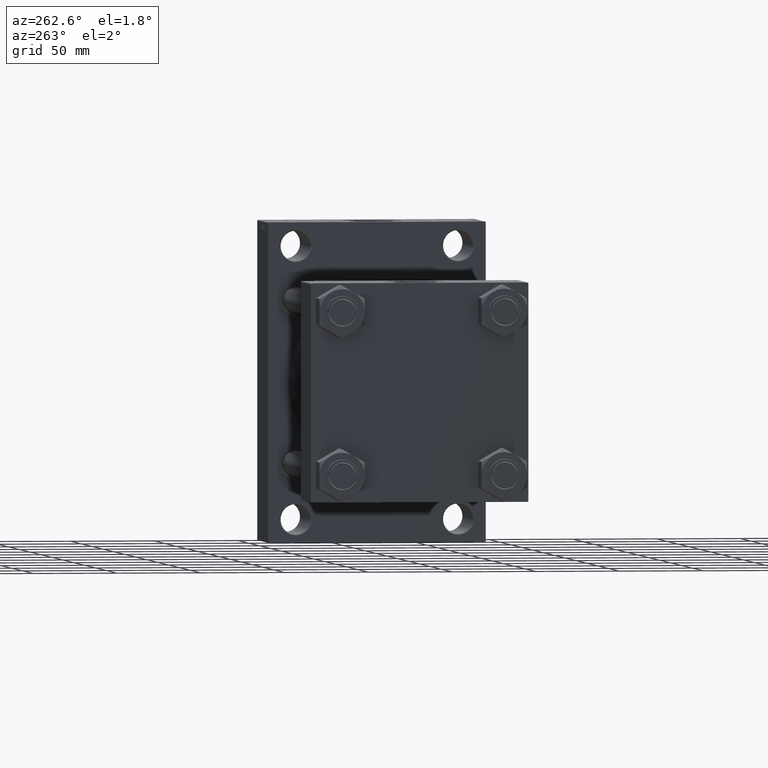
[diagram: clean part render]
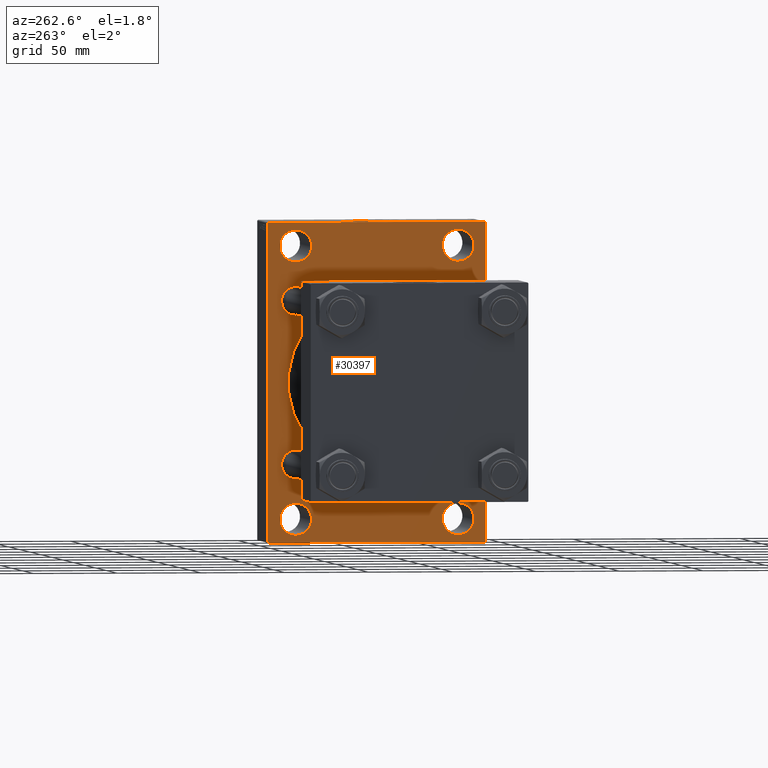
[diagram: same view with one face highlighted and labeled with its STEP entity id]
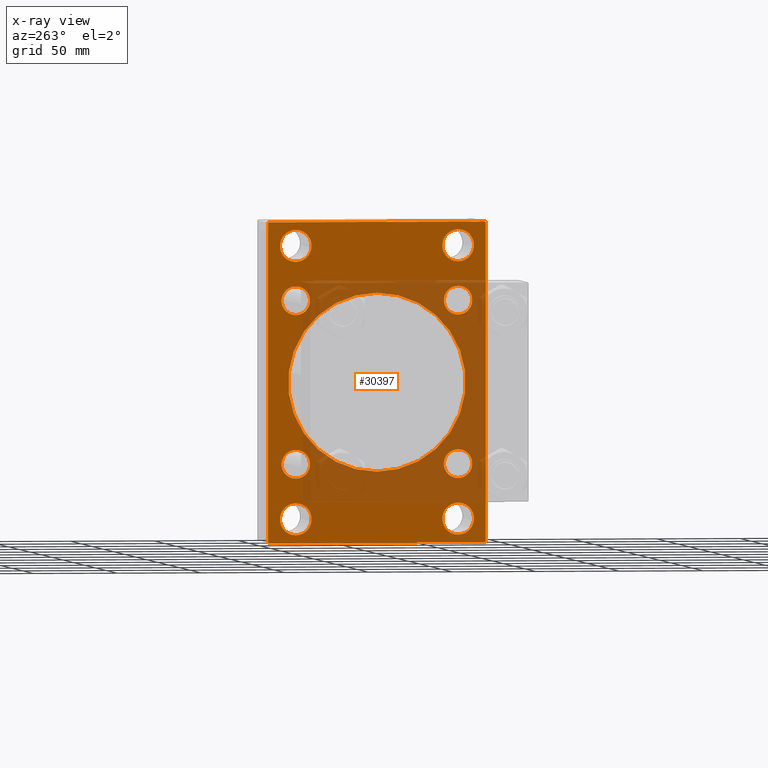
[diagram: x-ray of the same camera — body ghosted, the highlighted face saturated]
A machine part, auxiliary view. The second image highlights one B-rep face of the part: STEP entity #30397.
The next image is the same camera in x-ray: the body ghosted, the highlighted face saturated — about 39% of this face is hidden behind the body in this view.
In plain terms, the highlighted planar face has unit normal (-1, 0, 0).
Its self-contained STEP definition (entity closure, byte-faithful):
#356 = CARTESIAN_POINT ( 'NONE',  ( 196.0000000000000000, -79.75000000000180478, 79.74999999999738520 ) ) ;
#998 = VERTEX_POINT ( 'NONE', #7820 ) ;
#1625 = DIRECTION ( 'NONE',  ( 1.000000000000000000, 0.000000000000000000, 0.000000000000000000 ) ) ;
#1714 = AXIS2_PLACEMENT_3D ( 'NONE', #5591, #9005, #24082 ) ;
#1754 = AXIS2_PLACEMENT_3D ( 'NONE', #26127, #38005, #33653 ) ;
#2077 = CARTESIAN_POINT ( 'NONE',  ( 196.0000000000000000, -64.49999999999994316, -95.00000000000002842 ) ) ;
#2154 = VERTEX_POINT ( 'NONE', #45001 ) ;
#2474 = EDGE_CURVE ( 'NONE', #29212, #3887, #31483, .T. ) ;
#2677 = CARTESIAN_POINT ( 'NONE',  ( 196.0000000000000000, 48.44999999999999574, 56.95000000000000284 ) ) ;
#3015 = CARTESIAN_POINT ( 'NONE',  ( 196.0000000000000000, 48.50000000000000000, -81.00000000000000000 ) ) ;
#3027 = CARTESIAN_POINT ( 'NONE',  ( 196.0000000000000000, -48.50000000000000000, 81.00000000000000000 ) ) ;
#3032 = CIRCLE ( 'NONE', #30978, 53.00000000000000711 ) ;
#3301 = EDGE_CURVE ( 'NONE', #18861, #5012, #15437, .T. ) ;
#3400 = DIRECTION ( 'NONE',  ( 1.000000000000000000, 0.000000000000000000, 0.000000000000000000 ) ) ;
#3598 = EDGE_CURVE ( 'NONE', #38337, #2154, #32508, .T. ) ;
#3785 = EDGE_CURVE ( 'NONE', #7481, #21668, #3032, .T. ) ;
#3887 = VERTEX_POINT ( 'NONE', #8670 ) ;
#3930 = CARTESIAN_POINT ( 'NONE',  ( 196.0000000000000000, 48.50000000000000000, 81.00000000000000000 ) ) ;
#4138 = ORIENTED_EDGE ( 'NONE', *, *, #3301, .T. ) ;
#4166 = DIRECTION ( 'NONE',  ( 1.000000000000000000, 0.000000000000000000, 0.000000000000000000 ) ) ;
#4272 = EDGE_CURVE ( 'NONE', #15733, #44504, #27881, .T. ) ;
#4391 = EDGE_CURVE ( 'NONE', #27634, #29212, #33389, .T. ) ;
#4741 = CIRCLE ( 'NONE', #25686, 8.500000000000007105 ) ;
#5012 = VERTEX_POINT ( 'NONE', #33453 ) ;
#5091 = ORIENTED_EDGE ( 'NONE', *, *, #44669, .T. ) ;
#5335 = CARTESIAN_POINT ( 'NONE',  ( 196.0000000000000000, -48.44999999999998153, 48.45000000000000995 ) ) ;
#5413 = CIRCLE ( 'NONE', #35685, 8.500000000000007105 ) ;
#5591 = CARTESIAN_POINT ( 'NONE',  ( 196.0000000000000000, 0.000000000000000000, 0.000000000000000000 ) ) ;
#5601 = EDGE_LOOP ( 'NONE', ( #13112, #39757, #36485, #4138, #15569, #8187, #40488, #5091 ) ) ;
#5611 = VERTEX_POINT ( 'NONE', #45501 ) ;
#6015 = EDGE_CURVE ( 'NONE', #41871, #45757, #5413, .T. ) ;
#6331 = EDGE_LOOP ( 'NONE', ( #14628, #34509 ) ) ;
#6412 = AXIS2_PLACEMENT_3D ( 'NONE', #20114, #31303, #23998 ) ;
#6978 = EDGE_CURVE ( 'NONE', #13778, #5611, #10763, .T. ) ;
#7259 = EDGE_CURVE ( 'NONE', #35762, #22098, #31741, .T. ) ;
#7481 = VERTEX_POINT ( 'NONE', #14121 ) ;
#7628 = FACE_BOUND ( 'NONE', #6331, .T. ) ;
#7660 = VECTOR ( 'NONE', #18329, 1000.000000000000000 ) ;
#7820 = CARTESIAN_POINT ( 'NONE',  ( 196.0000000000000000, 48.44999999999999574, -56.95000000000000284 ) ) ;
#7823 = VECTOR ( 'NONE', #28080, 1000.000000000000000 ) ;
#8187 = ORIENTED_EDGE ( 'NONE', *, *, #4391, .T. ) ;
#8670 = CARTESIAN_POINT ( 'NONE',  ( 196.0000000000000000, 65.00000000000000000, -94.49999999999997158 ) ) ;
#9005 = DIRECTION ( 'NONE',  ( -1.000000000000000000, 0.000000000000000000, -0.000000000000000000 ) ) ;
#9244 = PLANE ( 'NONE',  #1714 ) ;
#9371 = EDGE_CURVE ( 'NONE', #19196, #31353, #33354, .T. ) ;
#9618 = DIRECTION ( 'NONE',  ( 1.000000000000000000, 0.000000000000000000, 0.000000000000000000 ) ) ;
#9842 = CARTESIAN_POINT ( 'NONE',  ( 196.0000000000000000, 48.50000000000000000, -71.50000000000002842 ) ) ;
#9872 = EDGE_CURVE ( 'NONE', #2154, #38337, #10095, .T. ) ;
#10077 = CARTESIAN_POINT ( 'NONE',  ( 196.0000000000000000, -48.50000000000000000, 71.50000000000002842 ) ) ;
#10095 = CIRCLE ( 'NONE', #34171, 8.500000000000007105 ) ;
#10632 = DIRECTION ( 'NONE',  ( 1.000000000000000000, 0.000000000000000000, 0.000000000000000000 ) ) ;
#10763 = CIRCLE ( 'NONE', #16984, 9.499999999999980460 ) ;
#10941 = EDGE_CURVE ( 'NONE', #44504, #15733, #12462, .T. ) ;
#11093 = CIRCLE ( 'NONE', #13440, 9.499999999999980460 ) ;
#11094 = AXIS2_PLACEMENT_3D ( 'NONE', #3027, #47287, #13978 ) ;
#11164 = CIRCLE ( 'NONE', #18144, 53.00000000000000711 ) ;
#12070 = CARTESIAN_POINT ( 'NONE',  ( 196.0000000000000000, 64.50000000000000000, 95.00000000000000000 ) ) ;
#12181 = EDGE_CURVE ( 'NONE', #15138, #34450, #42175, .T. ) ;
#12295 = EDGE_CURVE ( 'NONE', #5611, #13778, #31142, .T. ) ;
#12327 = EDGE_LOOP ( 'NONE', ( #37002, #14875 ) ) ;
#12462 = CIRCLE ( 'NONE', #17123, 9.499999999999980460 ) ;
#12506 = ORIENTED_EDGE ( 'NONE', *, *, #6015, .T. ) ;
#12923 = EDGE_CURVE ( 'NONE', #38850, #998, #4741, .T. ) ;
#13032 = DIRECTION ( 'NONE',  ( 0.000000000000000000, 0.000000000000000000, 1.000000000000000000 ) ) ;
#13071 = VERTEX_POINT ( 'NONE', #35313 ) ;
#13112 = ORIENTED_EDGE ( 'NONE', *, *, #12181, .T. ) ;
#13162 = AXIS2_PLACEMENT_3D ( 'NONE', #3930, #4166, #18769 ) ;
#13230 = DIRECTION ( 'NONE',  ( 0.000000000000000000, 0.000000000000000000, 1.000000000000000000 ) ) ;
#13249 = DIRECTION ( 'NONE',  ( 0.000000000000000000, 0.000000000000000000, 1.000000000000000000 ) ) ;
#13440 = AXIS2_PLACEMENT_3D ( 'NONE', #22812, #1625, #31314 ) ;
#13478 = DIRECTION ( 'NONE',  ( 1.000000000000000000, 0.000000000000000000, 0.000000000000000000 ) ) ;
#13557 = CARTESIAN_POINT ( 'NONE',  ( 196.0000000000000000, -79.74999999999732836, -79.75000000000395062 ) ) ;
#13778 = VERTEX_POINT ( 'NONE', #9842 ) ;
#13978 = DIRECTION ( 'NONE',  ( 0.000000000000000000, 0.000000000000000000, 1.000000000000000000 ) ) ;
#13990 = CARTESIAN_POINT ( 'NONE',  ( 196.0000000000000000, 48.44999999999999574, 48.44999999999999574 ) ) ;
#14121 = CARTESIAN_POINT ( 'NONE',  ( 196.0000000000000000, 3.888542821515762466E-15, -53.00000000000000711 ) ) ;
#14122 = EDGE_LOOP ( 'NONE', ( #39034, #16926 ) ) ;
#14546 = ORIENTED_EDGE ( 'NONE', *, *, #32673, .T. ) ;
#14628 = ORIENTED_EDGE ( 'NONE', *, *, #44691, .T. ) ;
#14664 = AXIS2_PLACEMENT_3D ( 'NONE', #5335, #15568, #45235 ) ;
#14875 = ORIENTED_EDGE ( 'NONE', *, *, #12295, .T. ) ;
#14910 = CARTESIAN_POINT ( 'NONE',  ( 196.0000000000000000, 79.75000000000179057, 79.74999999999737099 ) ) ;
#15090 = ORIENTED_EDGE ( 'NONE', *, *, #3598, .T. ) ;
#15138 = VERTEX_POINT ( 'NONE', #20316 ) ;
#15411 = CARTESIAN_POINT ( 'NONE',  ( 196.0000000000000000, 48.44999999999999574, -39.94999999999998863 ) ) ;
#15413 = FACE_BOUND ( 'NONE', #44512, .T. ) ;
#15437 = LINE ( 'NONE', #356, #19300 ) ;
#15568 = DIRECTION ( 'NONE',  ( 1.000000000000000000, 0.000000000000000000, 0.000000000000000000 ) ) ;
#15569 = ORIENTED_EDGE ( 'NONE', *, *, #28136, .F. ) ;
#15711 = CARTESIAN_POINT ( 'NONE',  ( 196.0000000000000000, -48.50000000000000000, -90.49999999999998579 ) ) ;
#15733 = VERTEX_POINT ( 'NONE', #15711 ) ;
#15881 = EDGE_CURVE ( 'NONE', #998, #38850, #23454, .T. ) ;
#15980 = CARTESIAN_POINT ( 'NONE',  ( 196.0000000000000000, -65.00000000000000000, 94.49999999999998579 ) ) ;
#16674 = LINE ( 'NONE', #31505, #33546 ) ;
#16713 = ORIENTED_EDGE ( 'NONE', *, *, #20610, .T. ) ;
#16926 = ORIENTED_EDGE ( 'NONE', *, *, #15881, .T. ) ;
#16984 = AXIS2_PLACEMENT_3D ( 'NONE', #29366, #10632, #33246 ) ;
#17123 = AXIS2_PLACEMENT_3D ( 'NONE', #24161, #13478, #13230 ) ;
#18144 = AXIS2_PLACEMENT_3D ( 'NONE', #38951, #35070, #27561 ) ;
#18329 = DIRECTION ( 'NONE',  ( 0.000000000000000000, 0.7071067811865279218, -0.7071067811865672237 ) ) ;
#18769 = DIRECTION ( 'NONE',  ( 0.000000000000000000, 0.000000000000000000, 1.000000000000000000 ) ) ;
#18828 = EDGE_LOOP ( 'NONE', ( #12506, #46051 ) ) ;
#18861 = VERTEX_POINT ( 'NONE', #15980 ) ;
#19184 = AXIS2_PLACEMENT_3D ( 'NONE', #37406, #3400, #29415 ) ;
#19196 = VERTEX_POINT ( 'NONE', #32722 ) ;
#19300 = VECTOR ( 'NONE', #26877, 1000.000000000000000 ) ;
#19507 = CARTESIAN_POINT ( 'NONE',  ( 196.0000000000000000, -48.44999999999998153, -56.95000000000001705 ) ) ;
#19986 = VERTEX_POINT ( 'NONE', #10077 ) ;
#20091 = EDGE_CURVE ( 'NONE', #19986, #13071, #39066, .T. ) ;
#20114 = CARTESIAN_POINT ( 'NONE',  ( 196.0000000000000000, 48.44999999999999574, 48.44999999999999574 ) ) ;
#20294 = CARTESIAN_POINT ( 'NONE',  ( 196.0000000000000000, -48.50000000000000000, -81.00000000000000000 ) ) ;
#20316 = CARTESIAN_POINT ( 'NONE',  ( 196.0000000000000000, 64.49999999999997158, -95.00000000000002842 ) ) ;
#20442 = FACE_BOUND ( 'NONE', #18828, .T. ) ;
#20610 = EDGE_CURVE ( 'NONE', #13071, #19986, #21215, .T. ) ;
#21215 = CIRCLE ( 'NONE', #27427, 9.499999999999980460 ) ;
#21340 = CARTESIAN_POINT ( 'NONE',  ( 196.0000000000000000, -65.00000000000000000, -94.50000000000001421 ) ) ;
#21668 = VERTEX_POINT ( 'NONE', #42084 ) ;
#22000 = DIRECTION ( 'NONE',  ( 0.000000000000000000, 0.000000000000000000, 1.000000000000000000 ) ) ;
#22098 = VERTEX_POINT ( 'NONE', #27326 ) ;
#22587 = CARTESIAN_POINT ( 'NONE',  ( 196.0000000000000000, 79.75000000000179057, -79.74999999999737099 ) ) ;
#22812 = CARTESIAN_POINT ( 'NONE',  ( 196.0000000000000000, 48.50000000000000000, 81.00000000000000000 ) ) ;
#23385 = DIRECTION ( 'NONE',  ( 0.000000000000000000, 0.000000000000000000, 1.000000000000000000 ) ) ;
#23454 = CIRCLE ( 'NONE', #1754, 8.500000000000007105 ) ;
#23618 = FACE_BOUND ( 'NONE', #12327, .T. ) ;
#23904 = CARTESIAN_POINT ( 'NONE',  ( 196.0000000000000000, 65.00000000000000000, 94.49999999999997158 ) ) ;
#23998 = DIRECTION ( 'NONE',  ( 0.000000000000000000, 0.000000000000000000, 1.000000000000000000 ) ) ;
#24082 = DIRECTION ( 'NONE',  ( -0.000000000000000000, 0.000000000000000000, 1.000000000000000000 ) ) ;
#24161 = CARTESIAN_POINT ( 'NONE',  ( 196.0000000000000000, -48.50000000000000000, -81.00000000000000000 ) ) ;
#24295 = ORIENTED_EDGE ( 'NONE', *, *, #37760, .T. ) ;
#24340 = EDGE_LOOP ( 'NONE', ( #33023, #44617 ) ) ;
#24974 = CARTESIAN_POINT ( 'NONE',  ( 196.0000000000000000, -48.44999999999998153, 56.95000000000001705 ) ) ;
#25686 = AXIS2_PLACEMENT_3D ( 'NONE', #46555, #43165, #13249 ) ;
#25860 = DIRECTION ( 'NONE',  ( 0.000000000000000000, -1.000000000000000000, -1.067522139062650425E-16 ) ) ;
#26102 = LINE ( 'NONE', #29989, #26217 ) ;
#26122 = FACE_OUTER_BOUND ( 'NONE', #5601, .T. ) ;
#26127 = CARTESIAN_POINT ( 'NONE',  ( 196.0000000000000000, 48.44999999999999574, -48.44999999999999574 ) ) ;
#26217 = VECTOR ( 'NONE', #25860, 1000.000000000000000 ) ;
#26408 = CARTESIAN_POINT ( 'NONE',  ( 196.0000000000000000, -48.50000000000000000, 81.00000000000000000 ) ) ;
#26877 = DIRECTION ( 'NONE',  ( -0.000000000000000000, 0.7071067811865279218, 0.7071067811865671127 ) ) ;
#27271 = ORIENTED_EDGE ( 'NONE', *, *, #9371, .T. ) ;
#27326 = CARTESIAN_POINT ( 'NONE',  ( 196.0000000000000000, -48.44999999999998153, -39.95000000000000284 ) ) ;
#27427 = AXIS2_PLACEMENT_3D ( 'NONE', #26408, #36869, #36398 ) ;
#27561 = DIRECTION ( 'NONE',  ( 0.000000000000000000, 0.000000000000000000, -1.000000000000000000 ) ) ;
#27634 = VERTEX_POINT ( 'NONE', #12070 ) ;
#27748 = FACE_BOUND ( 'NONE', #24340, .T. ) ;
#27881 = CIRCLE ( 'NONE', #37959, 9.499999999999980460 ) ;
#28080 = DIRECTION ( 'NONE',  ( 0.000000000000000000, -1.000000000000000000, 0.000000000000000000 ) ) ;
#28136 = EDGE_CURVE ( 'NONE', #27634, #5012, #26102, .T. ) ;
#29212 = VERTEX_POINT ( 'NONE', #23904 ) ;
#29366 = CARTESIAN_POINT ( 'NONE',  ( 196.0000000000000000, 48.50000000000000000, -81.00000000000000000 ) ) ;
#29415 = DIRECTION ( 'NONE',  ( 0.000000000000000000, 0.000000000000000000, 1.000000000000000000 ) ) ;
#29573 = AXIS2_PLACEMENT_3D ( 'NONE', #3015, #47272, #32676 ) ;
#29989 = CARTESIAN_POINT ( 'NONE',  ( 196.0000000000000000, 65.00000000000000000, 95.00000000000000000 ) ) ;
#30095 = ORIENTED_EDGE ( 'NONE', *, *, #9872, .T. ) ;
#30199 = EDGE_CURVE ( 'NONE', #18861, #38146, #16674, .T. ) ;
#30251 = FACE_BOUND ( 'NONE', #14122, .T. ) ;
#30397 = ADVANCED_FACE ( 'NONE', ( #42335, #27748, #23618, #31397, #41426, #20442, #30251, #7628, #15413, #26122 ), #9244, .T. ) ;
#30944 = CARTESIAN_POINT ( 'NONE',  ( 196.0000000000000000, 48.50000000000000000, 90.49999999999998579 ) ) ;
#30978 = AXIS2_PLACEMENT_3D ( 'NONE', #40570, #33037, #47870 ) ;
#31142 = CIRCLE ( 'NONE', #29573, 9.499999999999980460 ) ;
#31263 = DIRECTION ( 'NONE',  ( 0.000000000000000000, 0.000000000000000000, -1.000000000000000000 ) ) ;
#31303 = DIRECTION ( 'NONE',  ( 1.000000000000000000, 0.000000000000000000, 0.000000000000000000 ) ) ;
#31314 = DIRECTION ( 'NONE',  ( 0.000000000000000000, 0.000000000000000000, 1.000000000000000000 ) ) ;
#31353 = VERTEX_POINT ( 'NONE', #30944 ) ;
#31397 = FACE_BOUND ( 'NONE', #43082, .T. ) ;
#31483 = LINE ( 'NONE', #42672, #48010 ) ;
#31505 = CARTESIAN_POINT ( 'NONE',  ( 196.0000000000000000, -65.00000000000000000, 94.99999999999998579 ) ) ;
#31654 = CARTESIAN_POINT ( 'NONE',  ( 196.0000000000000000, -48.44999999999998153, -48.45000000000000995 ) ) ;
#31741 = CIRCLE ( 'NONE', #37922, 8.500000000000007105 ) ;
#31795 = DIRECTION ( 'NONE',  ( 0.000000000000000000, -0.7071067811865769936, 0.7071067811865181518 ) ) ;
#31905 = EDGE_CURVE ( 'NONE', #45757, #41871, #40573, .T. ) ;
#32508 = CIRCLE ( 'NONE', #14664, 8.500000000000007105 ) ;
#32673 = EDGE_CURVE ( 'NONE', #31353, #19196, #11093, .T. ) ;
#32676 = DIRECTION ( 'NONE',  ( 0.000000000000000000, 0.000000000000000000, 1.000000000000000000 ) ) ;
#32722 = CARTESIAN_POINT ( 'NONE',  ( 196.0000000000000000, 48.50000000000000000, 71.50000000000002842 ) ) ;
#32785 = EDGE_CURVE ( 'NONE', #34450, #38146, #39068, .T. ) ;
#33023 = ORIENTED_EDGE ( 'NONE', *, *, #10941, .T. ) ;
#33037 = DIRECTION ( 'NONE',  ( 1.000000000000000000, 0.000000000000000000, 0.000000000000000000 ) ) ;
#33246 = DIRECTION ( 'NONE',  ( 0.000000000000000000, 0.000000000000000000, 1.000000000000000000 ) ) ;
#33354 = CIRCLE ( 'NONE', #13162, 9.499999999999980460 ) ;
#33389 = LINE ( 'NONE', #14910, #7660 ) ;
#33453 = CARTESIAN_POINT ( 'NONE',  ( 196.0000000000000000, -64.50000000000002842, 94.99999999999998579 ) ) ;
#33546 = VECTOR ( 'NONE', #31263, 1000.000000000000000 ) ;
#33653 = DIRECTION ( 'NONE',  ( 0.000000000000000000, 0.000000000000000000, 1.000000000000000000 ) ) ;
#33746 = DIRECTION ( 'NONE',  ( 0.000000000000000000, 0.000000000000000000, -1.000000000000000000 ) ) ;
#34171 = AXIS2_PLACEMENT_3D ( 'NONE', #39276, #9618, #13032 ) ;
#34315 = EDGE_LOOP ( 'NONE', ( #15090, #30095 ) ) ;
#34374 = VECTOR ( 'NONE', #31795, 1000.000000000000000 ) ;
#34450 = VERTEX_POINT ( 'NONE', #2077 ) ;
#34509 = ORIENTED_EDGE ( 'NONE', *, *, #7259, .T. ) ;
#34805 = CARTESIAN_POINT ( 'NONE',  ( 196.0000000000000000, 48.44999999999999574, 39.94999999999998863 ) ) ;
#35070 = DIRECTION ( 'NONE',  ( 1.000000000000000000, 0.000000000000000000, 0.000000000000000000 ) ) ;
#35313 = CARTESIAN_POINT ( 'NONE',  ( 196.0000000000000000, -48.50000000000000000, 90.49999999999998579 ) ) ;
#35492 = VECTOR ( 'NONE', #40595, 1000.000000000000000 ) ;
#35509 = CARTESIAN_POINT ( 'NONE',  ( 196.0000000000000000, -48.50000000000000000, -71.50000000000002842 ) ) ;
#35685 = AXIS2_PLACEMENT_3D ( 'NONE', #13990, #46817, #22000 ) ;
#35762 = VERTEX_POINT ( 'NONE', #19507 ) ;
#35843 = DIRECTION ( 'NONE',  ( 1.000000000000000000, 0.000000000000000000, 0.000000000000000000 ) ) ;
#36398 = DIRECTION ( 'NONE',  ( 0.000000000000000000, 0.000000000000000000, 1.000000000000000000 ) ) ;
#36485 = ORIENTED_EDGE ( 'NONE', *, *, #30199, .F. ) ;
#36703 = LINE ( 'NONE', #22587, #35492 ) ;
#36869 = DIRECTION ( 'NONE',  ( 1.000000000000000000, 0.000000000000000000, 0.000000000000000000 ) ) ;
#37002 = ORIENTED_EDGE ( 'NONE', *, *, #6978, .T. ) ;
#37406 = CARTESIAN_POINT ( 'NONE',  ( 196.0000000000000000, -48.44999999999998153, -48.45000000000000995 ) ) ;
#37760 = EDGE_CURVE ( 'NONE', #21668, #7481, #11164, .T. ) ;
#37922 = AXIS2_PLACEMENT_3D ( 'NONE', #31654, #45753, #23385 ) ;
#37959 = AXIS2_PLACEMENT_3D ( 'NONE', #20294, #35843, #42914 ) ;
#38005 = DIRECTION ( 'NONE',  ( 1.000000000000000000, 0.000000000000000000, 0.000000000000000000 ) ) ;
#38146 = VERTEX_POINT ( 'NONE', #21340 ) ;
#38337 = VERTEX_POINT ( 'NONE', #24974 ) ;
#38850 = VERTEX_POINT ( 'NONE', #15411 ) ;
#38875 = ORIENTED_EDGE ( 'NONE', *, *, #3785, .T. ) ;
#38951 = CARTESIAN_POINT ( 'NONE',  ( 196.0000000000000000, -2.602085213965210642E-15, 0.000000000000000000 ) ) ;
#39034 = ORIENTED_EDGE ( 'NONE', *, *, #12923, .T. ) ;
#39066 = CIRCLE ( 'NONE', #11094, 9.499999999999980460 ) ;
#39068 = LINE ( 'NONE', #13557, #34374 ) ;
#39276 = CARTESIAN_POINT ( 'NONE',  ( 196.0000000000000000, -48.44999999999998153, 48.45000000000000995 ) ) ;
#39757 = ORIENTED_EDGE ( 'NONE', *, *, #32785, .T. ) ;
#40488 = ORIENTED_EDGE ( 'NONE', *, *, #2474, .T. ) ;
#40570 = CARTESIAN_POINT ( 'NONE',  ( 196.0000000000000000, -2.602085213965210642E-15, 0.000000000000000000 ) ) ;
#40573 = CIRCLE ( 'NONE', #6412, 8.500000000000007105 ) ;
#40595 = DIRECTION ( 'NONE',  ( -0.000000000000000000, -0.7071067811865279218, -0.7071067811865672237 ) ) ;
#41426 = FACE_BOUND ( 'NONE', #34315, .T. ) ;
#41748 = ORIENTED_EDGE ( 'NONE', *, *, #20091, .T. ) ;
#41871 = VERTEX_POINT ( 'NONE', #2677 ) ;
#42084 = CARTESIAN_POINT ( 'NONE',  ( 196.0000000000000000, -2.602085213965210642E-15, 53.00000000000000711 ) ) ;
#42175 = LINE ( 'NONE', #46545, #7823 ) ;
#42335 = FACE_BOUND ( 'NONE', #47919, .T. ) ;
#42672 = CARTESIAN_POINT ( 'NONE',  ( 196.0000000000000000, 65.00000000000000000, 95.00000000000000000 ) ) ;
#42914 = DIRECTION ( 'NONE',  ( 0.000000000000000000, 0.000000000000000000, 1.000000000000000000 ) ) ;
#43082 = EDGE_LOOP ( 'NONE', ( #14546, #27271 ) ) ;
#43165 = DIRECTION ( 'NONE',  ( 1.000000000000000000, 0.000000000000000000, 0.000000000000000000 ) ) ;
#44504 = VERTEX_POINT ( 'NONE', #35509 ) ;
#44512 = EDGE_LOOP ( 'NONE', ( #24295, #38875 ) ) ;
#44617 = ORIENTED_EDGE ( 'NONE', *, *, #4272, .T. ) ;
#44669 = EDGE_CURVE ( 'NONE', #3887, #15138, #36703, .T. ) ;
#44691 = EDGE_CURVE ( 'NONE', #22098, #35762, #46347, .T. ) ;
#45001 = CARTESIAN_POINT ( 'NONE',  ( 196.0000000000000000, -48.44999999999998153, 39.95000000000000284 ) ) ;
#45235 = DIRECTION ( 'NONE',  ( 0.000000000000000000, 0.000000000000000000, 1.000000000000000000 ) ) ;
#45501 = CARTESIAN_POINT ( 'NONE',  ( 196.0000000000000000, 48.50000000000000000, -90.49999999999998579 ) ) ;
#45753 = DIRECTION ( 'NONE',  ( 1.000000000000000000, 0.000000000000000000, 0.000000000000000000 ) ) ;
#45757 = VERTEX_POINT ( 'NONE', #34805 ) ;
#46051 = ORIENTED_EDGE ( 'NONE', *, *, #31905, .T. ) ;
#46347 = CIRCLE ( 'NONE', #19184, 8.500000000000007105 ) ;
#46545 = CARTESIAN_POINT ( 'NONE',  ( 196.0000000000000000, 65.00000000000000000, -95.00000000000002842 ) ) ;
#46555 = CARTESIAN_POINT ( 'NONE',  ( 196.0000000000000000, 48.44999999999999574, -48.44999999999999574 ) ) ;
#46817 = DIRECTION ( 'NONE',  ( 1.000000000000000000, 0.000000000000000000, 0.000000000000000000 ) ) ;
#47272 = DIRECTION ( 'NONE',  ( 1.000000000000000000, 0.000000000000000000, 0.000000000000000000 ) ) ;
#47287 = DIRECTION ( 'NONE',  ( 1.000000000000000000, 0.000000000000000000, 0.000000000000000000 ) ) ;
#47870 = DIRECTION ( 'NONE',  ( 0.000000000000000000, 0.000000000000000000, -1.000000000000000000 ) ) ;
#47919 = EDGE_LOOP ( 'NONE', ( #16713, #41748 ) ) ;
#48010 = VECTOR ( 'NONE', #33746, 1000.000000000000000 ) ;